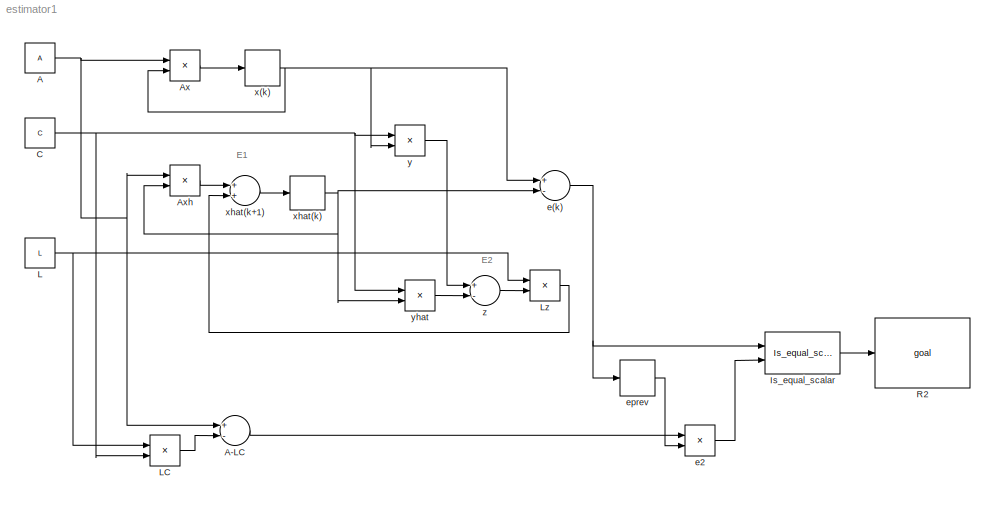
MODEL estimator1
KIND model
BLOCK [Constant] A
  SID = 2
  Value = A
  VectorParams1D = off
BLOCK [Sum] A-LC
  InputSameDT = off
  Inputs = +-
  OutDataTypeStr = Inherit: Inherit via internal rule
  Ports = [2, 1]
  SID = 1
  SaturateOnIntegerOverflow = off
BLOCK [Product] Ax
  InputSameDT = off
  Multiplication = Matrix(*)
  OutDataTypeStr = Inherit: Inherit via internal rule
  Ports = [2, 1]
  RndMeth = Floor
  SID = 3
  SaturateOnIntegerOverflow = off
BLOCK [Product] Axh
  InputSameDT = off
  Multiplication = Matrix(*)
  OutDataTypeStr = Inherit: Inherit via internal rule
  Ports = [2, 1]
  RndMeth = Floor
  SID = 4
  SaturateOnIntegerOverflow = off
BLOCK [Constant] C
  SID = 23
  Value = C
  VectorParams1D = off
BLOCK [Reference] Is_equal_scalar  REF=Is_equal_scalar/Is_equal_scalar
  FunctionWithSeparateData = off
  GeneratePreprocessorConditionals = off
  Ports = [2, 1]
  SID = 5
  ShowPortLabels = FromPortIcon
  SourceBlock = Is_equal_scalar/Is_equal_scalar
  SourceType = Is_equal_scalar
  SystemSampleTime = -1
BLOCK [Constant] L
  SID = 6
  Value = L
  VectorParams1D = off
BLOCK [Product] LC
  InputSameDT = off
  Multiplication = Matrix(*)
  OutDataTypeStr = Inherit: Inherit via internal rule
  Ports = [2, 1]
  RndMeth = Floor
  SID = 26
  SaturateOnIntegerOverflow = off
BLOCK [Product] Lz
  InputSameDT = off
  Multiplication = Matrix(*)
  OutDataTypeStr = Inherit: Inherit via internal rule
  Ports = [2, 1]
  RndMeth = Floor
  SID = 7
  SaturateOnIntegerOverflow = off
BLOCK [Reference] R2  REF=goal/goal  (lib defined in mdl_8f4c38bfa861)
  FunctionWithSeparateData = off
  GeneratePreprocessorConditionals = off
  Ports = [1]
  SID = 12
  ShowPortLabels = FromPortIcon
  SourceBlock = goal/goal
  SourceType = Goal
  SystemSampleTime = -1
BLOCK [Sum] e(k)
  InputSameDT = off
  Inputs = +-
  OutDataTypeStr = Inherit: Inherit via internal rule
  Ports = [2, 1]
  SID = 13
  SaturateOnIntegerOverflow = off
BLOCK [Product] e2
  InputSameDT = off
  Multiplication = Matrix(*)
  OutDataTypeStr = Inherit: Inherit via internal rule
  Ports = [2, 1]
  RndMeth = Floor
  SID = 14
  SaturateOnIntegerOverflow = off
BLOCK [Delay] eprev
  DelayLength = 1
  InitialCondition = x1
  InputPortMap = u0
  Ports = [1, 1]
  SID = 15
  SampleTime = 0.1
BLOCK [Delay] x(k)
  DelayLength = 1
  InitialCondition = x1
  InputPortMap = u0
  Ports = [1, 1]
  SID = 16
  SampleTime = 0.1
BLOCK [Delay] xhat(k)
  DelayLength = 1
  InitialCondition = x1h
  InputPortMap = u0
  Ports = [1, 1]
  SID = 18
BLOCK [Sum] xhat(k+1)
  InputSameDT = off
  OutDataTypeStr = Inherit: Inherit via internal rule
  Ports = [2, 1]
  SID = 19
  SaturateOnIntegerOverflow = off
BLOCK [Product] y
  InputSameDT = off
  Multiplication = Matrix(*)
  OutDataTypeStr = Inherit: Inherit via internal rule
  Ports = [2, 1]
  RndMeth = Floor
  SID = 24
  SaturateOnIntegerOverflow = off
BLOCK [Product] yhat
  InputSameDT = off
  Multiplication = Matrix(*)
  OutDataTypeStr = Inherit: Inherit via internal rule
  Ports = [2, 1]
  RndMeth = Floor
  SID = 25
  SaturateOnIntegerOverflow = off
BLOCK [Sum] z
  InputSameDT = off
  Inputs = +-
  OutDataTypeStr = Inherit: Inherit via internal rule
  Ports = [2, 1]
  SID = 17
  SaturateOnIntegerOverflow = off
ANNOTATION (root): E1
ANNOTATION (root): E2
LINE A-LC:1 -> e2:1
NET A:1 -> A-LC:1, Ax:1, Axh:1
LINE Ax:1 -> x(k):1
LINE Axh:1 -> xhat(k+1):1
NET C:1 -> LC:2, y:1, yhat:1
LINE Is_equal_scalar:1 -> R2:1
NET L:1 -> LC:1, Lz:1
LINE LC:1 -> A-LC:2
LINE Lz:1 -> xhat(k+1):2
NET e(k):1 -> Is_equal_scalar:1, eprev:1
LINE e2:1 -> Is_equal_scalar:2
LINE eprev:1 -> e2:2
NET x(k):1 -> Ax:2, e(k):1, y:2
NET xhat(k):1 -> Axh:2, e(k):2, yhat:2
LINE xhat(k+1):1 -> xhat(k):1
LINE y:1 -> z:1
LINE yhat:1 -> z:2
LINE z:1 -> Lz:2
note: NET lines group one-source signal fan-out (src -> all destinations, sorted); 1:1 wires keep LINE
